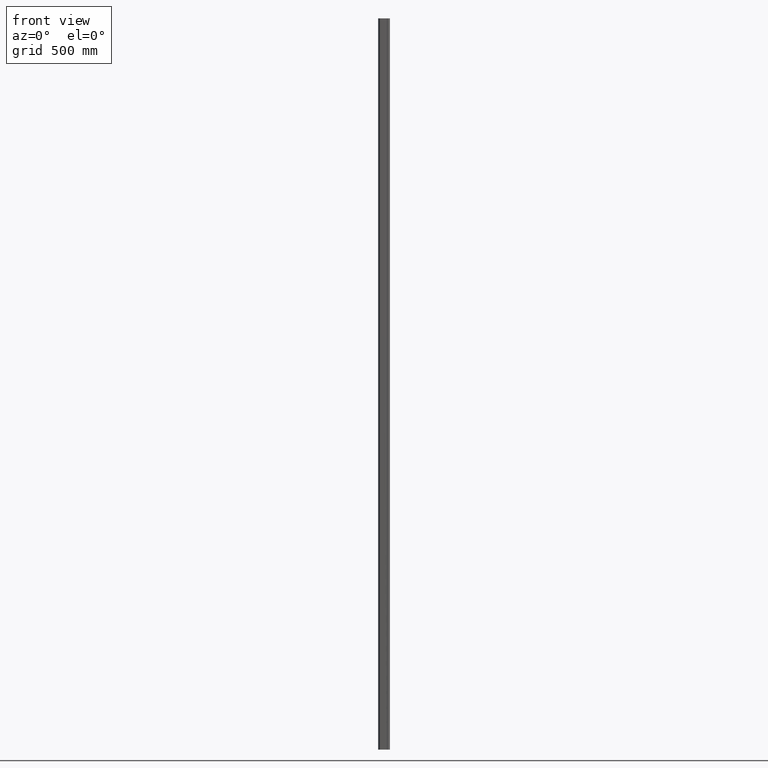
[diagram: clean part render]
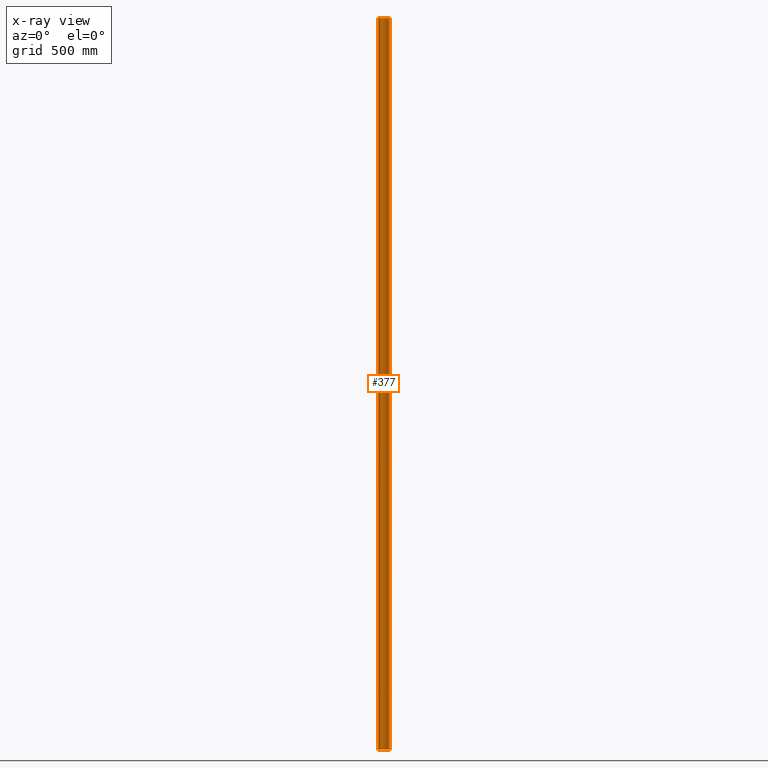
[diagram: x-ray — body ghosted, one internal face saturated and labeled with its STEP entity id]
A machine part, front view, then the same camera in x-ray: the body is ghosted and one INTERNAL B-rep face — a face not visible from any outside direction — is saturated and labeled: STEP entity #377.
In plain terms, the highlighted cylindrical surface (edge-blend (fillet) strip) has radius 22.65 mm, axis along (0, 0, 1).
Its self-contained STEP definition (entity closure, byte-faithful):
#108 = ORIENTED_EDGE ( 'NONE', *, *, #13966, .T. ) ;
#306 = CARTESIAN_POINT ( 'NONE',  ( 15.84988713318283615, 0.7908802295327060916, -1500.000000000000000 ) ) ;
#377 = ADVANCED_FACE ( 'NONE', ( #5430 ), #4859, .F. ) ;
#881 = DIRECTION ( 'NONE',  ( 0.000000000000000000, 0.000000000000000000, 1.000000000000000000 ) ) ;
#1557 = LINE ( 'NONE', #8440, #3619 ) ;
#1614 = DIRECTION ( 'NONE',  ( 1.000000000000000000, 0.000000000000000000, 0.000000000000000000 ) ) ;
#1674 = EDGE_CURVE ( 'NONE', #10532, #15809, #10188, .T. ) ;
#2160 = DIRECTION ( 'NONE',  ( 1.000000000000000000, 0.000000000000000000, 0.000000000000000000 ) ) ;
#3317 = CARTESIAN_POINT ( 'NONE',  ( -15.84988713318285747, 0.7908802295327234111, -1500.000000000000000 ) ) ;
#3617 = DIRECTION ( 'NONE',  ( 1.000000000000000000, 0.000000000000000000, 0.000000000000000000 ) ) ;
#3619 = VECTOR ( 'NONE', #4666, 1000.000000000000000 ) ;
#3815 = AXIS2_PLACEMENT_3D ( 'NONE', #5369, #10033, #1614 ) ;
#4666 = DIRECTION ( 'NONE',  ( 0.000000000000000000, 0.000000000000000000, 1.000000000000000000 ) ) ;
#4739 = CARTESIAN_POINT ( 'NONE',  ( 1.045905862409840323E-15, 16.97122564813749790, -1500.000000000000000 ) ) ;
#4859 = CYLINDRICAL_SURFACE ( 'NONE', #3815, 22.64999999999999858 ) ;
#4978 = ORIENTED_EDGE ( 'NONE', *, *, #1674, .F. ) ;
#5369 = CARTESIAN_POINT ( 'NONE',  ( 1.045905862409840323E-15, 16.97122564813749790, -1500.000000000000000 ) ) ;
#5430 = FACE_OUTER_BOUND ( 'NONE', #12534, .T. ) ;
#6878 = ORIENTED_EDGE ( 'NONE', *, *, #9562, .F. ) ;
#6911 = EDGE_CURVE ( 'NONE', #7274, #14837, #14281, .T. ) ;
#7139 = DIRECTION ( 'NONE',  ( 0.000000000000000000, 0.000000000000000000, 1.000000000000000000 ) ) ;
#7274 = VERTEX_POINT ( 'NONE', #8244 ) ;
#7825 = AXIS2_PLACEMENT_3D ( 'NONE', #9549, #881, #2160 ) ;
#8244 = CARTESIAN_POINT ( 'NONE',  ( 15.84988713318283615, 0.7908802295327060916, 1500.000000000000000 ) ) ;
#8246 = CARTESIAN_POINT ( 'NONE',  ( -15.84988713318285747, 0.7908802295327234111, -1500.000000000000000 ) ) ;
#8440 = CARTESIAN_POINT ( 'NONE',  ( 15.84988713318283615, 0.7908802295327060916, -1500.000000000000000 ) ) ;
#9132 = AXIS2_PLACEMENT_3D ( 'NONE', #4739, #7139, #3617 ) ;
#9195 = CARTESIAN_POINT ( 'NONE',  ( -15.84988713318285747, 0.7908802295327234111, 1500.000000000000000 ) ) ;
#9549 = CARTESIAN_POINT ( 'NONE',  ( 1.045905862409840323E-15, 16.97122564813749790, 1500.000000000000000 ) ) ;
#9562 = EDGE_CURVE ( 'NONE', #15809, #14837, #12313, .T. ) ;
#10033 = DIRECTION ( 'NONE',  ( 0.000000000000000000, 0.000000000000000000, 1.000000000000000000 ) ) ;
#10188 = CIRCLE ( 'NONE', #9132, 22.64999999999999858 ) ;
#10532 = VERTEX_POINT ( 'NONE', #306 ) ;
#10973 = VECTOR ( 'NONE', #15569, 1000.000000000000000 ) ;
#11393 = ORIENTED_EDGE ( 'NONE', *, *, #6911, .T. ) ;
#12313 = LINE ( 'NONE', #8246, #10973 ) ;
#12534 = EDGE_LOOP ( 'NONE', ( #11393, #6878, #4978, #108 ) ) ;
#13966 = EDGE_CURVE ( 'NONE', #10532, #7274, #1557, .T. ) ;
#14281 = CIRCLE ( 'NONE', #7825, 22.64999999999999858 ) ;
#14837 = VERTEX_POINT ( 'NONE', #9195 ) ;
#15569 = DIRECTION ( 'NONE',  ( 0.000000000000000000, 0.000000000000000000, 1.000000000000000000 ) ) ;
#15809 = VERTEX_POINT ( 'NONE', #3317 ) ;